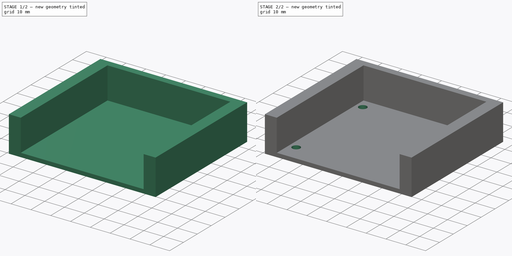
[diagram: build sequence overview — one tinted view per stage of 2, left to right]
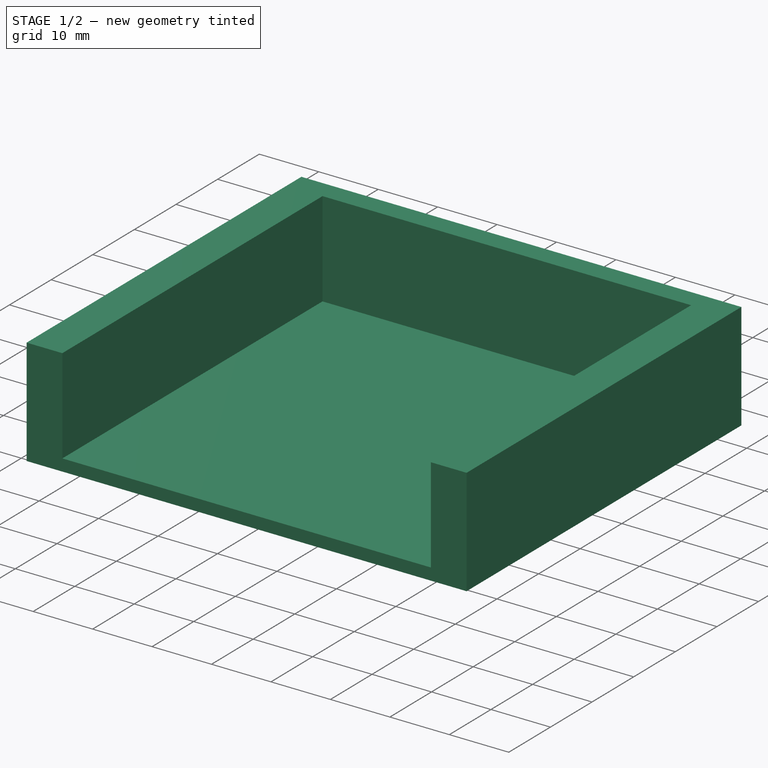
[diagram: stage 1 of 2 — iso view after this stage's code; geometry added in this stage tinted green]
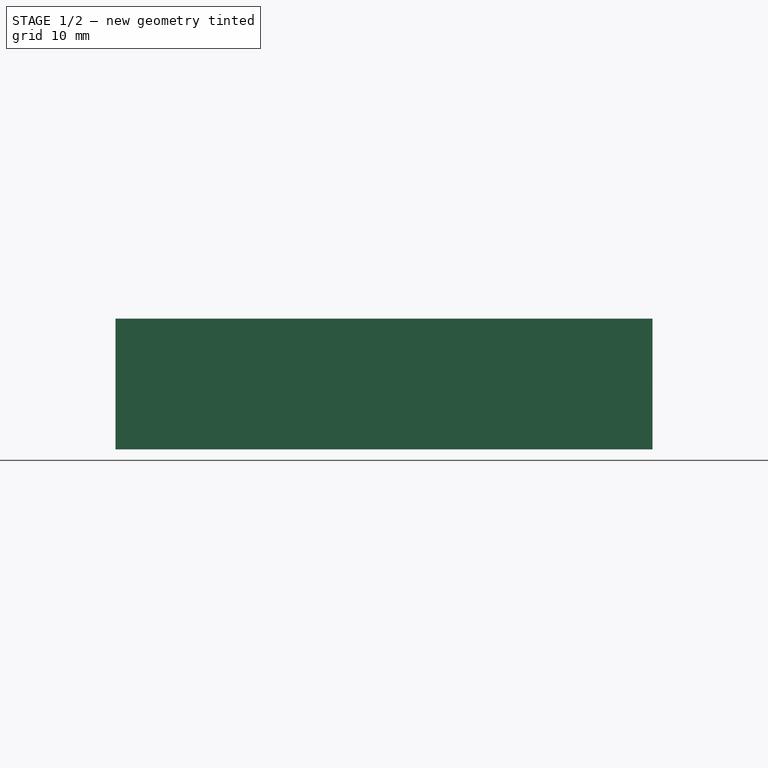
[diagram: stage 1 of 2 — front view after this stage's code; geometry added in this stage tinted green]
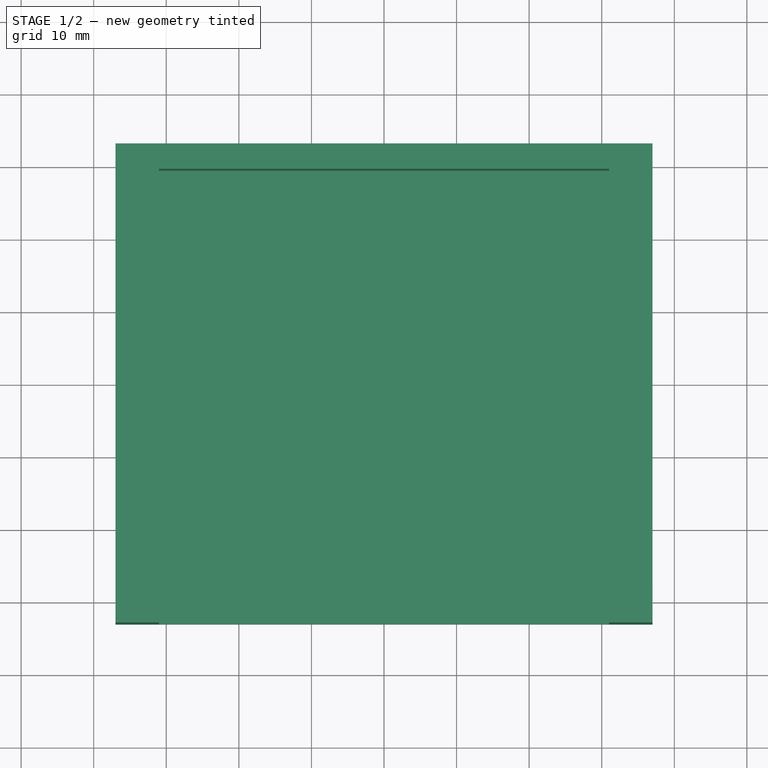
[diagram: stage 1 of 2 — top view after this stage's code; geometry added in this stage tinted green]
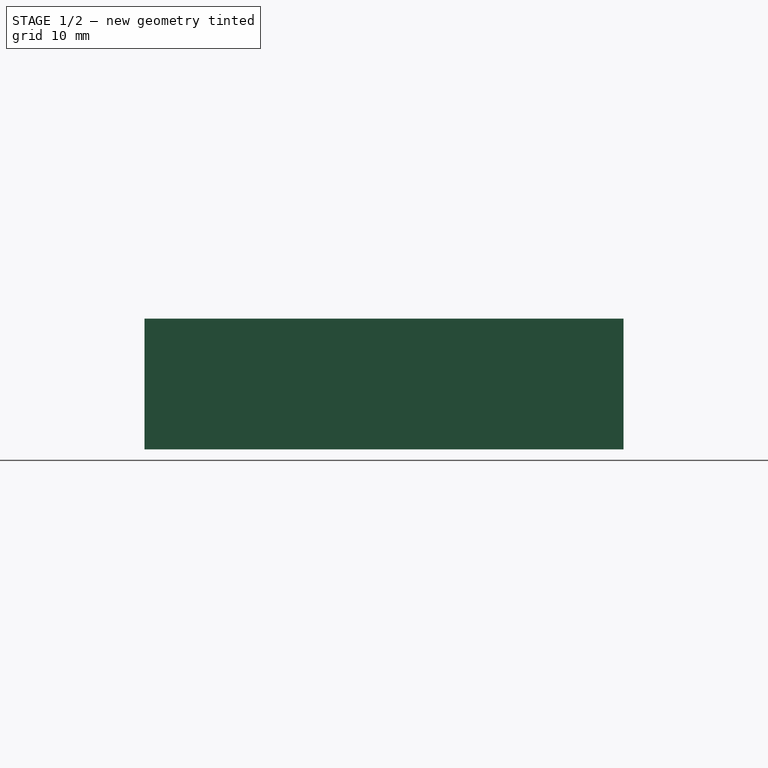
[diagram: stage 1 of 2 — right view after this stage's code; geometry added in this stage tinted green]
FCSTD DOCUMENT  (FreeCAD 0.21R33694 (Git))
Label: OrangePiZero2Holder
License: All rights reserved
LicenseURL: https://en.wikipedia.org/wiki/All_rights_reserved
objects: Sketcher::SketchObject×3, PartDesign::Pocket×2, PartDesign::Pad×1, PartDesign::Body×1
note: 10 computed .brp shape members not serialized (recipe doc carries the construction recipe); baked Part::Feature solids carry a one-line shape summary decoded from their .brp

FEATURE [Sketcher::SketchObject] Sketch001
  FullyConstrained = false
  MapMode = 5
  Support = -> [XY_Plane]
  sketch-geometry (10):
    g0: LineSegment StartX=-32 StartY=28 StartZ=0 EndX=32 EndY=28 EndZ=0
    g1: LineSegment StartX=32 StartY=28 StartZ=0 EndX=32 EndY=-28 EndZ=0
    g2: LineSegment StartX=32 StartY=-28 StartZ=0 EndX=-32 EndY=-28 EndZ=0
    g3: LineSegment StartX=-32 StartY=-28 StartZ=0 EndX=-32 EndY=28 EndZ=0
    g4: LineSegment StartX=-37 StartY=33 StartZ=0 EndX=37 EndY=33 EndZ=0
    g5: LineSegment StartX=37 StartY=33 StartZ=0 EndX=37 EndY=-33 EndZ=0
    g6: LineSegment StartX=37 StartY=-33 StartZ=0 EndX=-37 EndY=-33 EndZ=0
    g7: LineSegment StartX=-37 StartY=-33 StartZ=0 EndX=-37 EndY=33 EndZ=0
    g8: LineSegment StartX=32 StartY=1.35287 StartZ=0 EndX=37 EndY=1.35287 EndZ=0
    g9: LineSegment StartX=14.2593 StartY=33 StartZ=0 EndX=14.2593 EndY=28 EndZ=0
  constraints (26):
    c: Coincident(g0,g1)
    c: Coincident(g1,g2)
    c: Coincident(g2,g3)
    c: Coincident(g3,g0)
    c: Horizontal(g2)
    c: Vertical(g3)
    c: Coincident(g4,g5)
    c: Coincident(g5,g6)
    c: Coincident(g6,g7)
    c: Coincident(g7,g4)
    c: Horizontal(g6)
    c: Vertical(g7)
    c: Symmetric(g0,g0,g-2)
    c: Symmetric(g4,g4,g-2)
    c: Symmetric(g4,g5,g-1)
    c: Symmetric(g0,g1,g-1)
    c: PointOnObject(g8,g1)
    c: PointOnObject(g8,g5)
    c: Horizontal(g8)
    c: PointOnObject(g9,g4)
    c: PointOnObject(g9,g0)
    c: Vertical(g9)
    c: Equal(g9,g8)
    c: DistanceY(g1,g1) = 56
    c: DistanceX(g0,g0) = 64
    c: DistanceX(g8,g8) = 5
FEATURE [PartDesign::Pad] Pad
  Direction = (0,0,1)
  Length = 18
  Length2 = 10
  Profile = -> Sketch001
  ReferenceAxis = -> Sketch001 [N_Axis]
  Type = 0
FEATURE [Sketcher::SketchObject] Sketch
  ExternalGeometry = -> [Pad]
  FullyConstrained = true
  MapMode = 5
  Placement = pos=(0,0,18) rot=(0,0,1;0rad)
  Support = -> [Pad]
  sketch-geometry (7):
    g0: LineSegment StartX=-31 StartY=29.5 StartZ=0 EndX=31 EndY=29.5 EndZ=0
    g1: LineSegment StartX=31 StartY=29.5 StartZ=0 EndX=31 EndY=-29.5 EndZ=0
    g2: LineSegment StartX=31 StartY=-29.5 StartZ=0 EndX=-31 EndY=-29.5 EndZ=0
    g3: LineSegment StartX=-31 StartY=-29.5 StartZ=0 EndX=-31 EndY=29.5 EndZ=0
    g4: LineSegment StartX=-31 StartY=-29.5 StartZ=0 EndX=-31 EndY=-33 EndZ=0
    g5: LineSegment StartX=31 StartY=-29.5 StartZ=0 EndX=31 EndY=-33 EndZ=0
    g6: LineSegment StartX=-31 StartY=-33 StartZ=0 EndX=31 EndY=-33 EndZ=0
  constraints (18):
    c: Coincident(g0,g1)
    c: Coincident(g1,g2)
    c: Coincident(g2,g3)
    c: Coincident(g3,g0)
    c: Horizontal(g2)
    c: Vertical(g3)
    c: Symmetric(g0,g0,g-2)
    c: Symmetric(g0,g1,g-1)
    c: DistanceY(g1,g1) = 59
    c: DistanceX(g0,g0) = 62
    c: Coincident(g4,g3)
    c: Coincident(g5,g1)
    c: Coincident(g6,g4)
    c: Coincident(g6,g5)
    c: Horizontal(g6)
    c: PointOnObject(g4,g-3)
    c: Vertical(g4)
    c: Vertical(g5)
FEATURE [PartDesign::Pocket] Pocket
  BaseFeature = -> Pad
  Direction = (0,0,-1)
  Length = 16
  Length2 = 5
  Profile = -> Sketch
  ReferenceAxis = -> Sketch [N_Axis]
  Type = 0
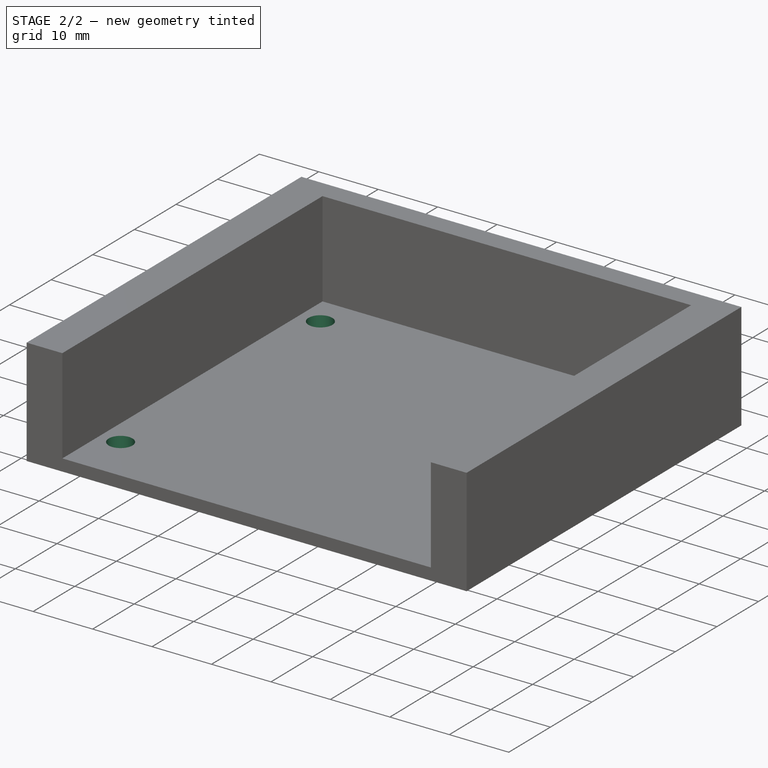
[diagram: stage 2 of 2 — iso view after this stage's code; geometry added in this stage tinted green]
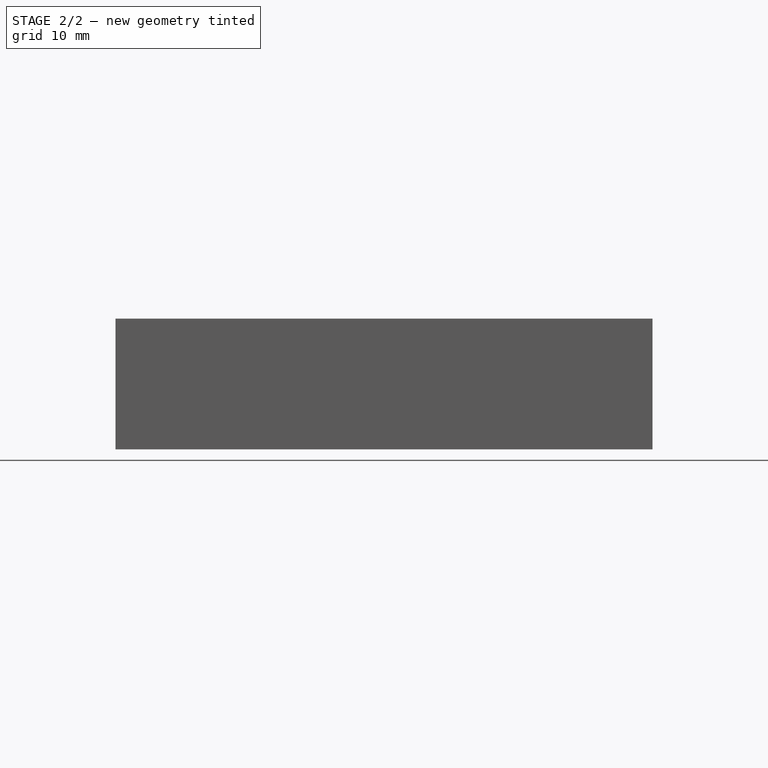
[diagram: stage 2 of 2 — front view after this stage's code; geometry added in this stage tinted green]
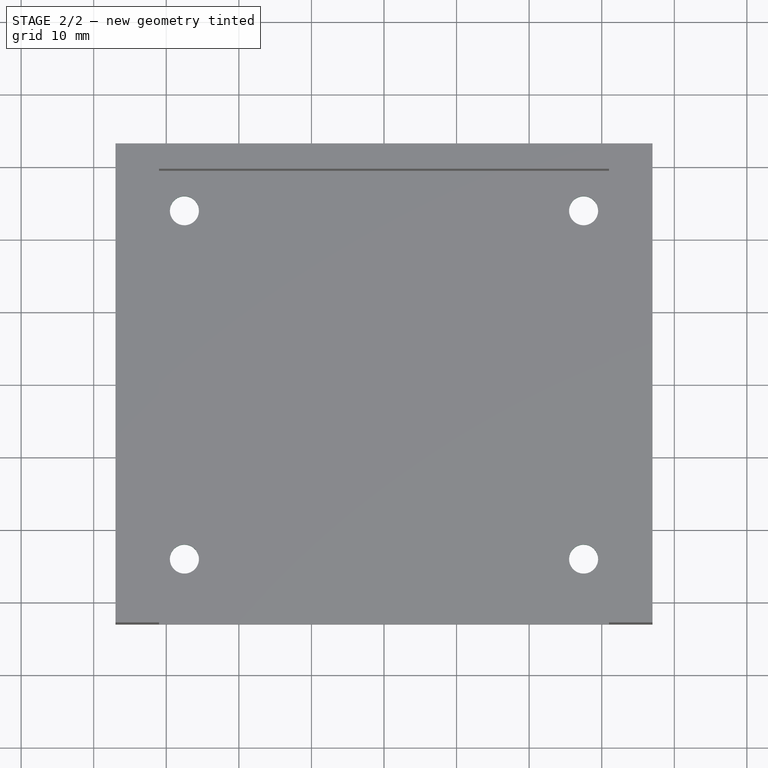
[diagram: stage 2 of 2 — top view after this stage's code; geometry added in this stage tinted green]
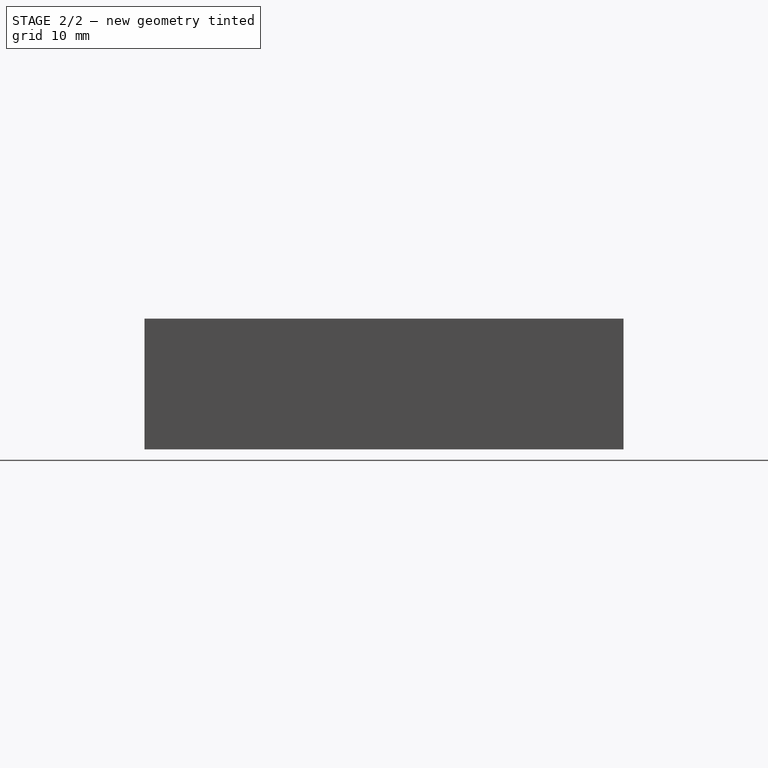
[diagram: stage 2 of 2 — right view after this stage's code; geometry added in this stage tinted green]
FEATURE [Sketcher::SketchObject] Sketch002
  FullyConstrained = true
  MapMode = 5
  Placement = pos=(0,0,2) rot=(0,0,1;0rad)
  Support = -> [Pocket]
  sketch-geometry (8):
    g0: LineSegment StartX=-27.5 StartY=24 StartZ=0 EndX=27.5 EndY=24 EndZ=0
    g1: LineSegment StartX=27.5 StartY=24 StartZ=0 EndX=27.5 EndY=-24 EndZ=0
    g2: LineSegment StartX=27.5 StartY=-24 StartZ=0 EndX=-27.5 EndY=-24 EndZ=0
    g3: LineSegment StartX=-27.5 StartY=-24 StartZ=0 EndX=-27.5 EndY=24 EndZ=0
    g4: Circle CenterX=-27.5 CenterY=24 CenterZ=0 NormalX=0 NormalY=0 NormalZ=1 AngleXU=0 Radius=2
    g5: Circle CenterX=27.5 CenterY=24 CenterZ=0 NormalX=0 NormalY=0 NormalZ=1 AngleXU=0 Radius=2
    g6: Circle CenterX=27.5 CenterY=-24 CenterZ=0 NormalX=0 NormalY=0 NormalZ=1 AngleXU=0 Radius=2
    g7: Circle CenterX=-27.5 CenterY=-24 CenterZ=0 NormalX=0 NormalY=0 NormalZ=1 AngleXU=0 Radius=2
  constraints (18):
    c: Coincident(g0,g1)
    c: Coincident(g1,g2)
    c: Coincident(g2,g3)
    c: Coincident(g3,g0)
    c: Horizontal(g2)
    c: Vertical(g3)
    c: Coincident(g4,g0)
    c: Coincident(g5,g0)
    c: Coincident(g6,g1)
    c: Coincident(g7,g2)
    c: Equal(g4,g7)
    c: Equal(g7,g5)
    c: Equal(g5,g6)
    c: Diameter(g7) = 4
    c: Symmetric(g4,g5,g-2)
    c: Symmetric(g5,g6,g-1)
    c: DistanceX(g4,g5) = 55
    c: DistanceY(g6,g5) = 48
FEATURE [PartDesign::Pocket] Pocket001
  BaseFeature = -> Pocket
  Direction = (0,0,-1)
  Length = 5
  Length2 = 5
  Profile = -> Sketch002
  ReferenceAxis = -> Sketch002 [N_Axis]
  Type = 1
FEATURE [PartDesign::Body] Body
  Group = -> [Sketch,Sketch001,Pad,Pocket,Sketch002,Pocket001]
  Origin = -> Origin
  Tip = -> Pocket001
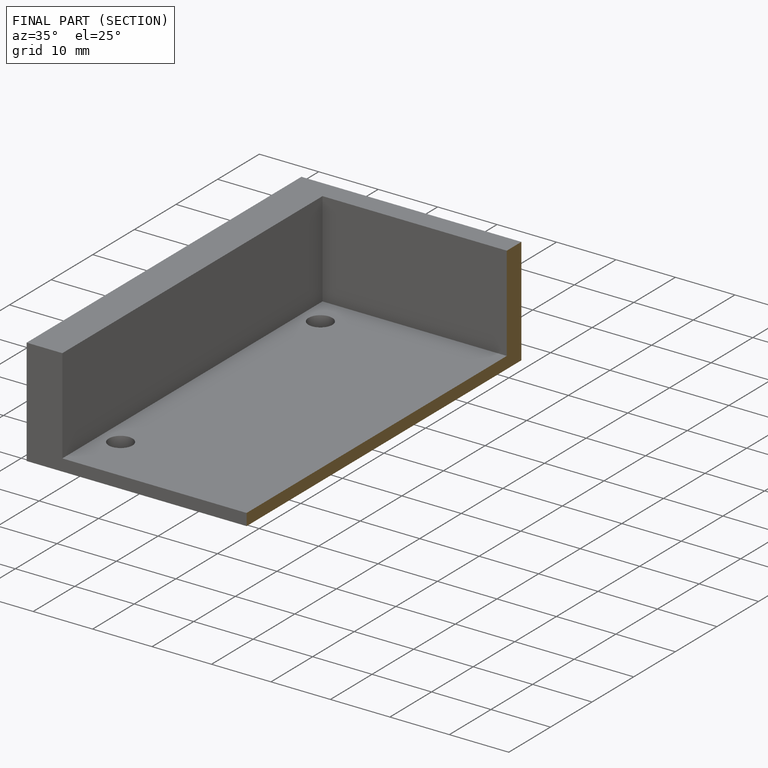
[diagram: finished part — half-section view (interior)]
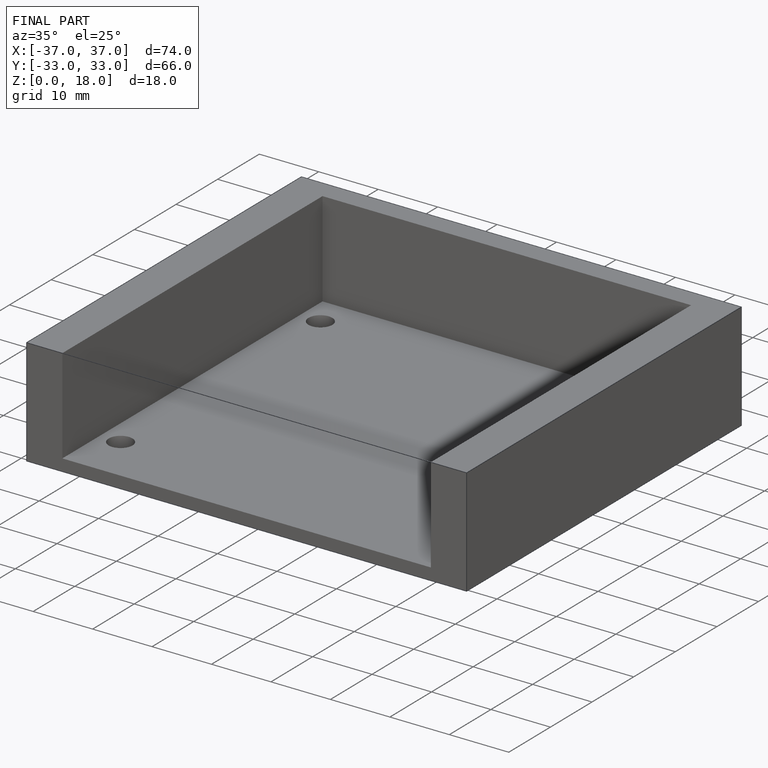
[diagram: finished part — iso view with bounding-box wireframe]
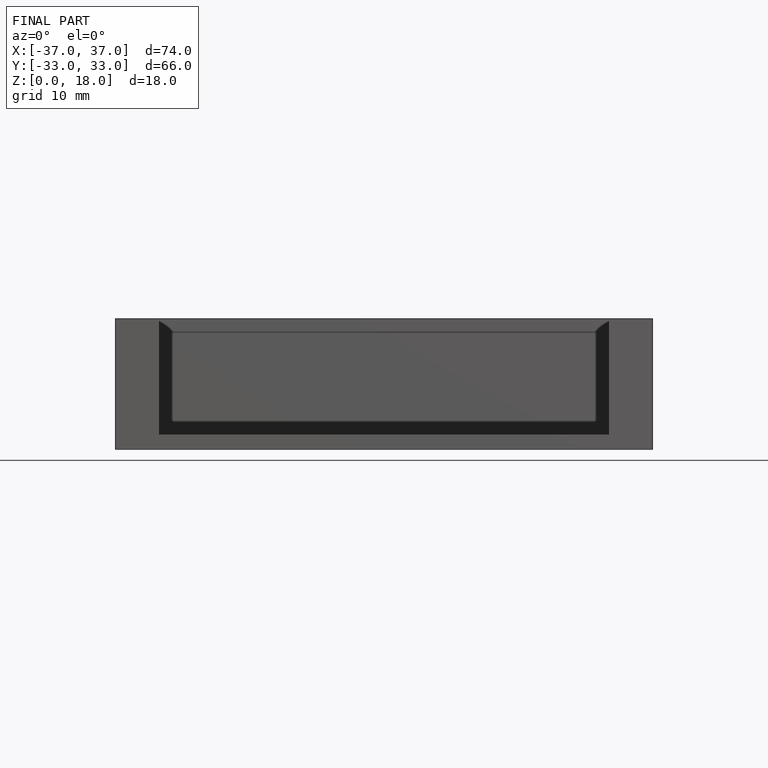
[diagram: finished part — front view with bounding-box wireframe]
